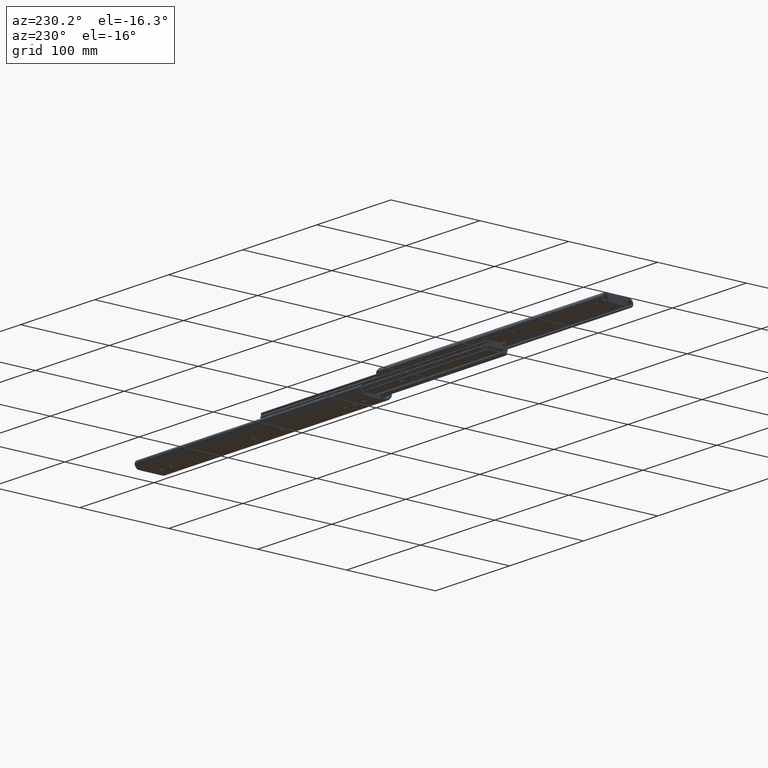
[diagram: clean part render]
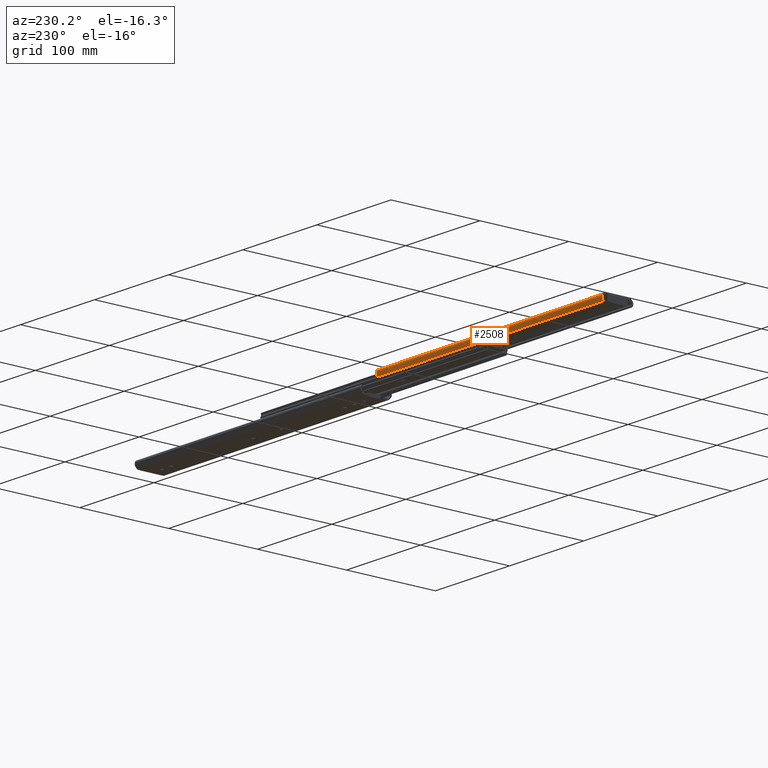
[diagram: same view with one face highlighted and labeled with its STEP entity id]
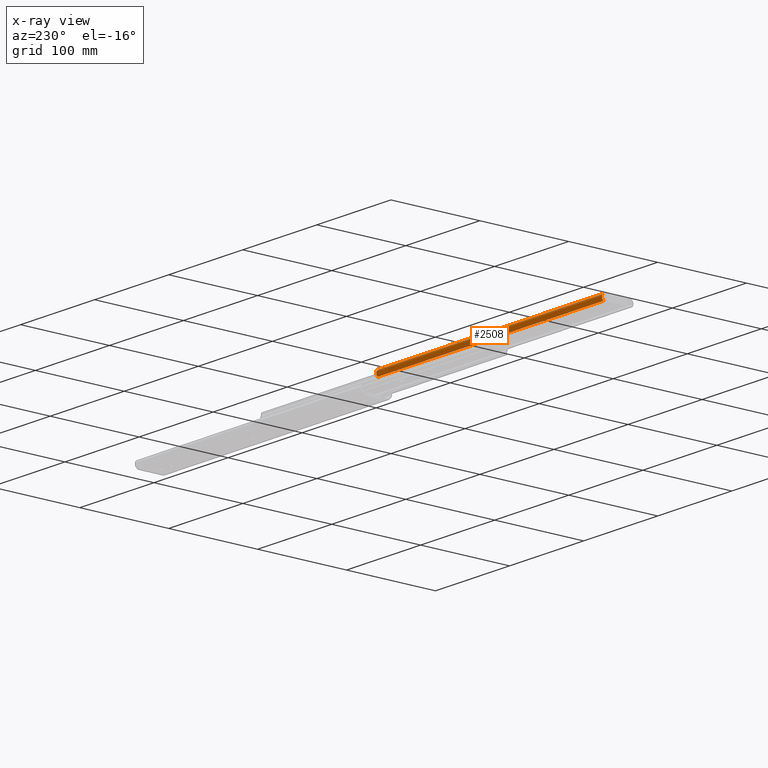
[diagram: x-ray of the same camera — body ghosted, the highlighted face saturated]
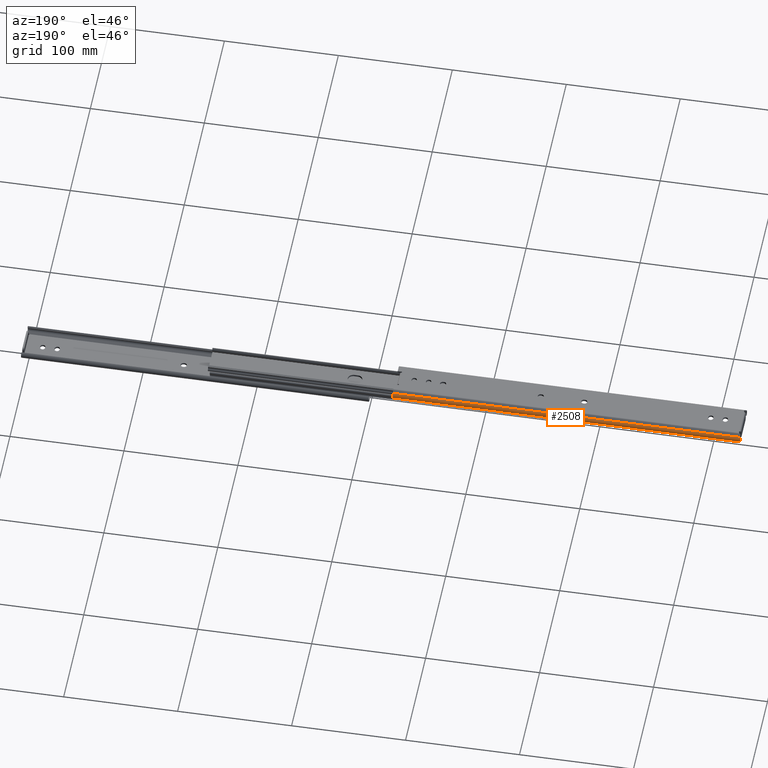
[diagram: same view with one face highlighted and labeled with its STEP entity id]
A machine part, auxiliary view. The second image highlights one B-rep face of the part: STEP entity #2508.
The next image is the same camera in x-ray: the body ghosted, the highlighted face saturated — about 0% of this face is hidden behind the body in this view.
A second angle (auxiliary view) of the same face is appended — the face is thin or edge-on in the first view.
In plain terms, the highlighted cylindrical surface (edge-blend (fillet) strip) has radius 4 mm, axis along (1, -0, 0).
Its self-contained STEP definition (entity closure, byte-faithful):
#24 = CARTESIAN_POINT ( 'NONE',  ( 0.0000000000000000000, 13.64999999999999700, 5.300000000000091300 ) ) ;
#111 = CARTESIAN_POINT ( 'NONE',  ( 304.8000000000000100, 15.91053091109173300, 8.600000000000021000 ) ) ;
#118 = ORIENTED_EDGE ( 'NONE', *, *, #406, .F. ) ;
#138 = EDGE_CURVE ( 'NONE', #2266, #864, #4233, .T. ) ;
#385 = DIRECTION ( 'NONE',  ( 0.0000000000000000000, 0.0000000000000000000, -1.000000000000000000 ) ) ;
#406 = EDGE_CURVE ( 'NONE', #1137, #1840, #3604, .T. ) ;
#504 = ORIENTED_EDGE ( 'NONE', *, *, #3284, .T. ) ;
#661 = CARTESIAN_POINT ( 'NONE',  ( 304.8000000000000100, 16.48258451996917300, 2.475736390272456500 ) ) ;
#836 = AXIS2_PLACEMENT_3D ( 'NONE', #3033, #4475, #902 ) ;
#864 = VERTEX_POINT ( 'NONE', #1673 ) ;
#902 = DIRECTION ( 'NONE',  ( 0.0000000000000000000, 0.0000000000000000000, -1.000000000000000000 ) ) ;
#1039 = CIRCLE ( 'NONE', #836, 4.000000000000095900 ) ;
#1137 = VERTEX_POINT ( 'NONE', #111 ) ;
#1280 = EDGE_CURVE ( 'NONE', #2266, #1137, #1039, .T. ) ;
#1673 = CARTESIAN_POINT ( 'NONE',  ( 0.0000000000000000000, 16.48258451996917300, 2.475736390272456500 ) ) ;
#1693 = VECTOR ( 'NONE', #3940, 1000.000000000000000 ) ;
#1840 = VERTEX_POINT ( 'NONE', #3723 ) ;
#1854 = ORIENTED_EDGE ( 'NONE', *, *, #138, .T. ) ;
#2150 = DIRECTION ( 'NONE',  ( 0.0000000000000000000, 0.0000000000000000000, 1.000000000000000000 ) ) ;
#2266 = VERTEX_POINT ( 'NONE', #2614 ) ;
#2313 = AXIS2_PLACEMENT_3D ( 'NONE', #2876, #3585, #2150 ) ;
#2487 = DIRECTION ( 'NONE',  ( 1.000000000000000000, 0.0000000000000000000, 0.0000000000000000000 ) ) ;
#2508 = ADVANCED_FACE ( 'NONE', ( #3700 ), #3588, .T. ) ;
#2614 = CARTESIAN_POINT ( 'NONE',  ( 304.8000000000000100, 16.48258451996917300, 2.475736390272456500 ) ) ;
#2783 = DIRECTION ( 'NONE',  ( -1.000000000000000000, -0.0000000000000000000, -0.0000000000000000000 ) ) ;
#2876 = CARTESIAN_POINT ( 'NONE',  ( 304.8000000000000100, 13.64999999999999700, 5.300000000000091300 ) ) ;
#2980 = EDGE_LOOP ( 'NONE', ( #504, #118, #3834, #1854 ) ) ;
#3033 = CARTESIAN_POINT ( 'NONE',  ( 304.8000000000000100, 13.64999999999999700, 5.300000000000091300 ) ) ;
#3129 = CIRCLE ( 'NONE', #3731, 4.000000000000095900 ) ;
#3284 = EDGE_CURVE ( 'NONE', #864, #1840, #3129, .T. ) ;
#3285 = VECTOR ( 'NONE', #2783, 1000.000000000000000 ) ;
#3576 = CARTESIAN_POINT ( 'NONE',  ( 304.8000000000000100, 15.91053091109173300, 8.600000000000021000 ) ) ;
#3585 = DIRECTION ( 'NONE',  ( -1.000000000000000000, -0.0000000000000000000, -0.0000000000000000000 ) ) ;
#3588 = CYLINDRICAL_SURFACE ( 'NONE', #2313, 4.000000000000095900 ) ;
#3604 = LINE ( 'NONE', #3576, #1693 ) ;
#3700 = FACE_OUTER_BOUND ( 'NONE', #2980, .T. ) ;
#3723 = CARTESIAN_POINT ( 'NONE',  ( 0.0000000000000000000, 15.91053091109173300, 8.600000000000021000 ) ) ;
#3731 = AXIS2_PLACEMENT_3D ( 'NONE', #24, #2487, #385 ) ;
#3834 = ORIENTED_EDGE ( 'NONE', *, *, #1280, .F. ) ;
#3940 = DIRECTION ( 'NONE',  ( -1.000000000000000000, -0.0000000000000000000, -0.0000000000000000000 ) ) ;
#4233 = LINE ( 'NONE', #661, #3285 ) ;
#4475 = DIRECTION ( 'NONE',  ( 1.000000000000000000, 0.0000000000000000000, 0.0000000000000000000 ) ) ;